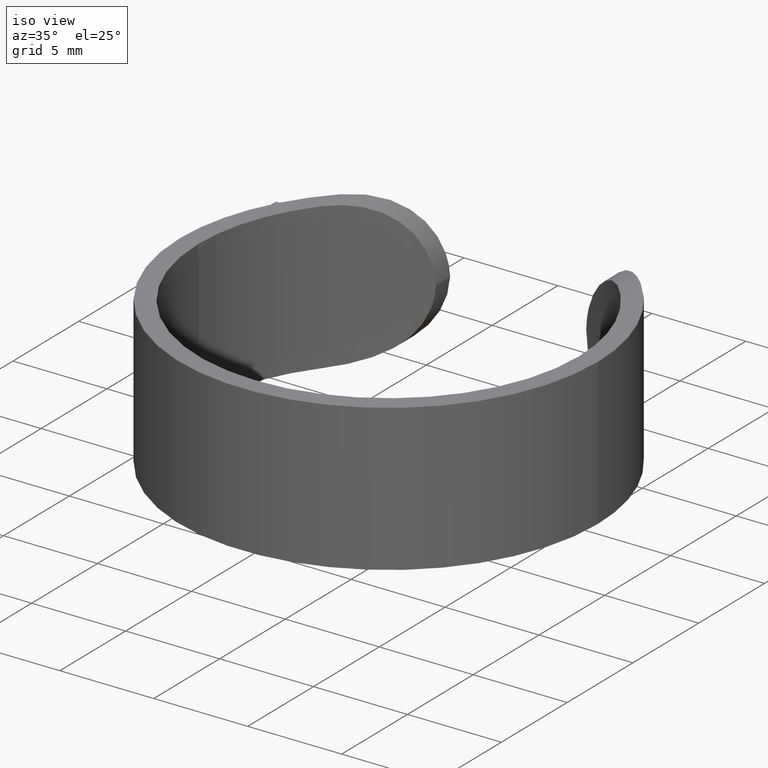
[diagram: clean part render]
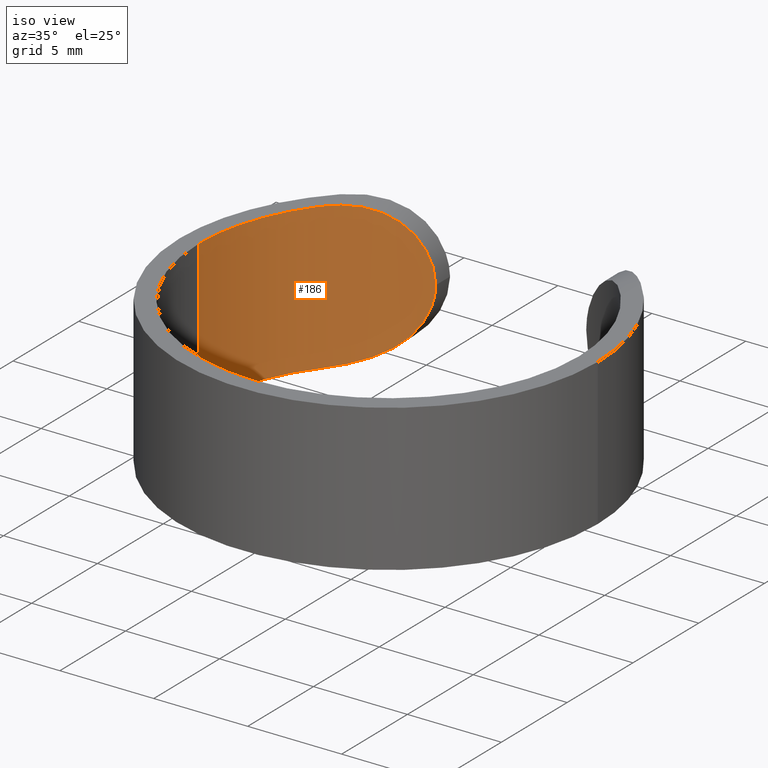
[diagram: same view with one face highlighted and labeled with its STEP entity id]
A machine part, iso view. The second image highlights one B-rep face of the part: STEP entity #186.
In plain terms, the highlighted cylindrical surface (partial cylindrical patch) has radius 10.125 mm, axis along (-0, -0, -1).
Its self-contained STEP definition (entity closure, byte-faithful):
#6 = VERTEX_POINT ( 'NONE', #142 ) ;
#9 = CARTESIAN_POINT ( 'NONE',  ( 0.0000000000000000000, 0.0000000000000000000, 7.799999999999999800 ) ) ;
#24 = EDGE_CURVE ( 'NONE', #573, #6, #172, .T. ) ;
#44 = CARTESIAN_POINT ( 'NONE',  ( -5.916901258061794300, 8.220814913419124200, 7.223746396989543700 ) ) ;
#46 = ORIENTED_EDGE ( 'NONE', *, *, #82, .T. ) ;
#63 = VERTEX_POINT ( 'NONE', #305 ) ;
#74 = EDGE_CURVE ( 'NONE', #493, #63, #141, .T. ) ;
#82 = EDGE_CURVE ( 'NONE', #354, #493, #334, .T. ) ;
#83 = DIRECTION ( 'NONE',  ( -0.0000000000000000000, -0.0000000000000000000, -1.000000000000000000 ) ) ;
#86 = CARTESIAN_POINT ( 'NONE',  ( -7.999999999999998200, 6.206095793653205700, 0.0000000000000000000 ) ) ;
#88 = CARTESIAN_POINT ( 'NONE',  ( -7.227798416163882000, 7.114393489978646700, 0.04915150761486868800 ) ) ;
#91 = CARTESIAN_POINT ( 'NONE',  ( -4.159431567750726100, 9.231270712618281100, 4.927905870786189800 ) ) ;
#95 = DIRECTION ( 'NONE',  ( -0.0000000000000000000, -0.0000000000000000000, -1.000000000000000000 ) ) ;
#98 = CARTESIAN_POINT ( 'NONE',  ( -5.919382580235975400, 8.219010380731557300, 0.5747888465101546100 ) ) ;
#127 = AXIS2_PLACEMENT_3D ( 'NONE', #241, #83, #368 ) ;
#137 = CARTESIAN_POINT ( 'NONE',  ( -4.001250195373558000, 9.300839847778426900, 3.899999999999997200 ) ) ;
#140 = CARTESIAN_POINT ( 'NONE',  ( -5.701258363416674700, 8.370991384762199100, 0.7154664408517542600 ) ) ;
#141 = CIRCLE ( 'NONE', #215, 10.12499999999999800 ) ;
#142 = CARTESIAN_POINT ( 'NONE',  ( -7.999999999999996400, 6.206095793653207500, 7.799999999999999800 ) ) ;
#145 = CARTESIAN_POINT ( 'NONE',  ( -7.008667805379441300, 7.312893272198249600, 7.681776929039928700 ) ) ;
#153 = CARTESIAN_POINT ( 'NONE',  ( -6.578328444203196800, 7.702300130280032200, 7.545635010830095800 ) ) ;
#165 = DIRECTION ( 'NONE',  ( -0.0000000000000000000, -0.0000000000000000000, -1.000000000000000000 ) ) ;
#172 = B_SPLINE_CURVE_WITH_KNOTS ( 'NONE', 3,
 ( #626, #339, #379, #91, #296, #465, #520, #247, #640, #390, #206, #300, #44, #386, #153, #145, #585, #527, #256, #201 ),
 .UNSPECIFIED., .F., .F.,
 ( 4, 2, 2, 2, 2, 2, 2, 2, 2, 4 ),
 ( 9.880161927173211100E-005, 0.0009922241704492529000, 0.001438935446038013700, 0.001885646721626774500, 0.002779069272804298100, 0.003672491823981821500, 0.004565914375159345300, 0.005459336926336869600, 0.006352759477514394700, 0.007246182028691920700 ),
 .UNSPECIFIED. ) ;
#186 = ADVANCED_FACE ( 'NONE', ( #192 ), #417, .F. ) ;
#192 = FACE_OUTER_BOUND ( 'NONE', #343, .T. ) ;
#193 = CARTESIAN_POINT ( 'NONE',  ( -4.568240781612600700, 9.037061119902722000, 1.924425472663032300 ) ) ;
#201 = CARTESIAN_POINT ( 'NONE',  ( -7.999999999999996400, 6.206095793653207500, 7.799999999999999800 ) ) ;
#206 = CARTESIAN_POINT ( 'NONE',  ( -5.280293115881816500, 8.642706744832672400, 6.745452536255834600 ) ) ;
#215 = AXIS2_PLACEMENT_3D ( 'NONE', #252, #95, #428 ) ;
#241 = CARTESIAN_POINT ( 'NONE',  ( 0.0000000000000000000, 0.0000000000000000000, 7.799999999999999800 ) ) ;
#245 = CARTESIAN_POINT ( 'NONE',  ( -6.356711401953806900, 7.885647844156165900, 0.3447786829046706700 ) ) ;
#247 = CARTESIAN_POINT ( 'NONE',  ( -4.565672505174214600, 9.038348224417907400, 5.871231290451265600 ) ) ;
#252 = CARTESIAN_POINT ( 'NONE',  ( 0.0000000000000000000, 0.0000000000000000000, 0.0000000000000000000 ) ) ;
#256 = CARTESIAN_POINT ( 'NONE',  ( -7.815797301672327000, 6.443543238168709700, 7.799999999999999800 ) ) ;
#296 = CARTESIAN_POINT ( 'NONE',  ( -4.204556946386481400, 9.210897228087516100, 5.071413838802312700 ) ) ;
#300 = CARTESIAN_POINT ( 'NONE',  ( -5.699572633629093100, 8.372141127620301000, 7.083371759473420700 ) ) ;
#305 = CARTESIAN_POINT ( 'NONE',  ( -7.999999999999998200, 6.206095793653205700, 0.0000000000000000000 ) ) ;
#312 = DIRECTION ( 'NONE',  ( -1.000000000000000000, 0.0000000000000000000, 0.0000000000000000000 ) ) ;
#334 = LINE ( 'NONE', #532, #500 ) ;
#338 = CARTESIAN_POINT ( 'NONE',  ( -5.086537306542195000, 8.756952909420586900, 1.244912483206867600 ) ) ;
#339 = CARTESIAN_POINT ( 'NONE',  ( -4.008770596894035700, 9.297604547682352600, 4.200722041107201900 ) ) ;
#342 = CARTESIAN_POINT ( 'NONE',  ( -4.049988818232482600, 9.280078048836511300, 3.301584504351906500 ) ) ;
#343 = EDGE_LOOP ( 'NONE', ( #629, #46, #461, #425, #528 ) ) ;
#354 = VERTEX_POINT ( 'NONE', #550 ) ;
#368 = DIRECTION ( 'NONE',  ( 1.000000000000000000, 0.0000000000000000000, 0.0000000000000000000 ) ) ;
#373 = CARTESIAN_POINT ( 'NONE',  ( -10.12499999999999800, 0.0000000000000000000, 0.0000000000000000000 ) ) ;
#379 = CARTESIAN_POINT ( 'NONE',  ( -4.049661632499908000, 9.280209340744386600, 4.495253138670401300 ) ) ;
#386 = CARTESIAN_POINT ( 'NONE',  ( -6.355170468924957700, 7.886908560979496700, 7.454569136473801400 ) ) ;
#390 = CARTESIAN_POINT ( 'NONE',  ( -5.084183932607387200, 8.758337401897840400, 6.552753230554032800 ) ) ;
#417 = CYLINDRICAL_SURFACE ( 'NONE', #490, 10.12499999999999800 ) ;
#421 = CARTESIAN_POINT ( 'NONE',  ( -4.730351865959904400, 8.954376430152176900, 1.678756115586326400 ) ) ;
#425 = ORIENTED_EDGE ( 'NONE', *, *, #549, .T. ) ;
#428 = DIRECTION ( 'NONE',  ( 1.000000000000000000, 0.0000000000000000000, 0.0000000000000000000 ) ) ;
#429 = CARTESIAN_POINT ( 'NONE',  ( -5.282141394911906000, 8.641575433585574100, 1.052862674444669000 ) ) ;
#443 = EDGE_CURVE ( 'NONE', #354, #6, #635, .T. ) ;
#461 = ORIENTED_EDGE ( 'NONE', *, *, #74, .T. ) ;
#463 = CARTESIAN_POINT ( 'NONE',  ( -7.631501941289895900, 6.681110129186931700, -1.677125235563514700E-016 ) ) ;
#464 = CARTESIAN_POINT ( 'NONE',  ( -4.198749070276262400, 9.213726947612435900, 2.719037896765006000 ) ) ;
#465 = CARTESIAN_POINT ( 'NONE',  ( -4.308830892505965500, 9.162581688671776800, 5.348273794457178100 ) ) ;
#467 = CARTESIAN_POINT ( 'NONE',  ( -4.001250195373558000, 9.300839847778426900, 3.899999999999997200 ) ) ;
#490 = AXIS2_PLACEMENT_3D ( 'NONE', #9, #165, #312 ) ;
#493 = VERTEX_POINT ( 'NONE', #373 ) ;
#500 = VECTOR ( 'NONE', #578, 1000.000000000000000 ) ;
#510 = CARTESIAN_POINT ( 'NONE',  ( -6.579378790269395900, 7.701455034789922200, 0.2539073486593014800 ) ) ;
#513 = CARTESIAN_POINT ( 'NONE',  ( -4.303570322429815000, 9.166055858631191100, 2.443918835569503800 ) ) ;
#520 = CARTESIAN_POINT ( 'NONE',  ( -4.368036621169348900, 9.134618264531310300, 5.482258337740738300 ) ) ;
#527 = CARTESIAN_POINT ( 'NONE',  ( -7.620885438308254000, 6.672744582655006700, 7.787204401882585000 ) ) ;
#528 = ORIENTED_EDGE ( 'NONE', *, *, #24, .T. ) ;
#532 = CARTESIAN_POINT ( 'NONE',  ( -10.12499999999999800, 0.0000000000000000000, 7.799999999999999800 ) ) ;
#542 = B_SPLINE_CURVE_WITH_KNOTS ( 'NONE', 3,
 ( #86, #463, #88, #510, #245, #98, #140, #429, #338, #421, #193, #513, #464, #342, #574, #137 ),
 .UNSPECIFIED., .F., .F.,
 ( 4, 2, 2, 2, 2, 2, 2, 4 ),
 ( 0.0000000000000000000, 0.001781276321637600700, 0.002671914482456400800, 0.003562552643275201400, 0.004453190804094002400, 0.005343828964912801700, 0.006234467125731603600, 0.007125105286550404600 ),
 .UNSPECIFIED. ) ;
#549 = EDGE_CURVE ( 'NONE', #63, #573, #542, .T. ) ;
#550 = CARTESIAN_POINT ( 'NONE',  ( -10.12499999999999800, 0.0000000000000000000, 7.799999999999999800 ) ) ;
#573 = VERTEX_POINT ( 'NONE', #467 ) ;
#574 = CARTESIAN_POINT ( 'NONE',  ( -4.008790584810822300, 9.297595948818459600, 3.598478692109352600 ) ) ;
#578 = DIRECTION ( 'NONE',  ( -0.0000000000000000000, -0.0000000000000000000, -1.000000000000000000 ) ) ;
#585 = CARTESIAN_POINT ( 'NONE',  ( -7.217641228604095200, 7.106973351879469500, 7.728032783226035800 ) ) ;
#626 = CARTESIAN_POINT ( 'NONE',  ( -4.001250195373558000, 9.300839847778426900, 3.899999999999997200 ) ) ;
#629 = ORIENTED_EDGE ( 'NONE', *, *, #443, .F. ) ;
#635 = CIRCLE ( 'NONE', #127, 10.12499999999999800 ) ;
#640 = CARTESIAN_POINT ( 'NONE',  ( -4.726582608043480100, 8.956384156310329900, 6.116111453541725100 ) ) ;